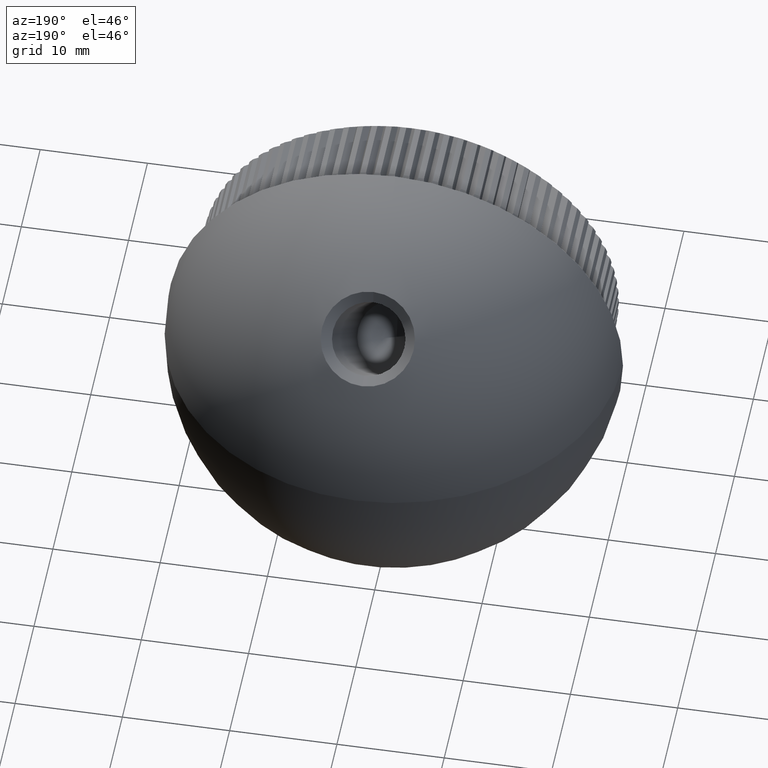
[diagram: clean part render]
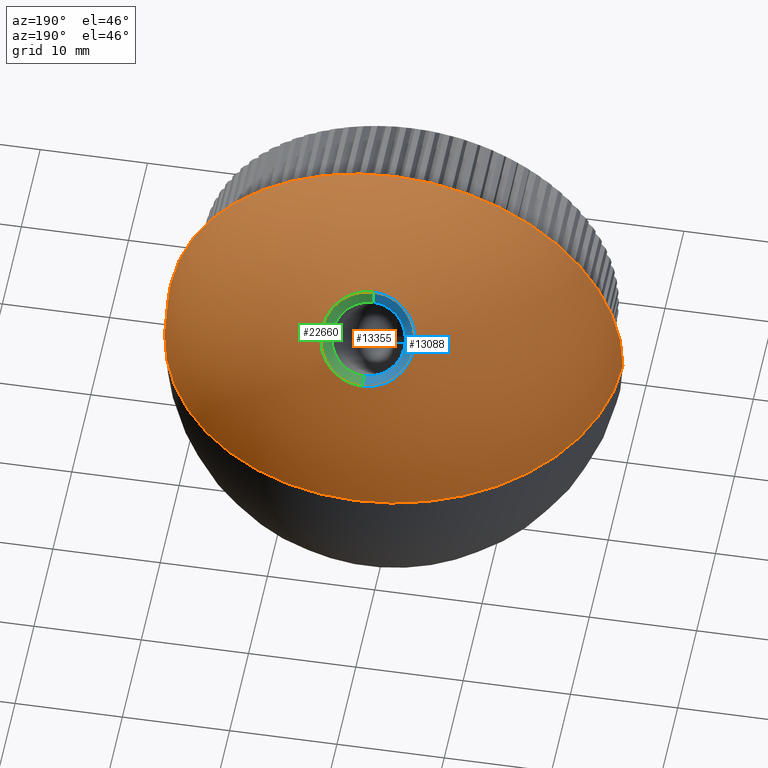
[diagram: same view with three faces highlighted in distinct colors, each labeled with its STEP entity id]
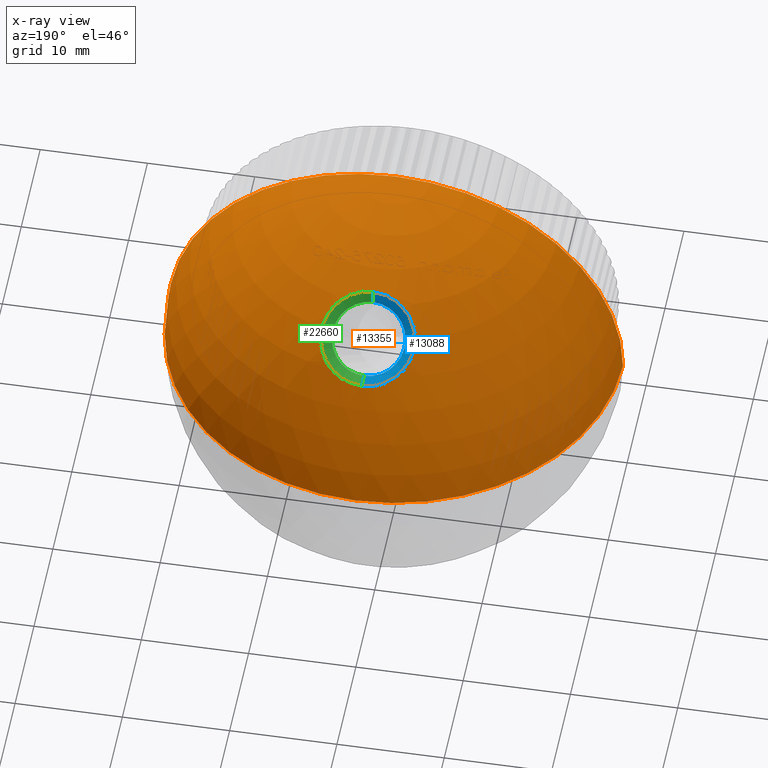
[diagram: x-ray of the same camera — body ghosted, the three highlighted faces saturated]
A machine part, auxiliary view with three faces highlighted in distinct colors.
The next image is the same camera in x-ray (body ghosted, the three faces saturated) — at least one of them is partly hidden behind the body in this view.
Their STEP definitions:

[orange] entity #13355 — the highlighted spherical surface has radius 21.2 mm.
#14 = CARTESIAN_POINT ( 'NONE',  ( -1.149114390993522900E-027, 8.999999999999996400, 0.0000000000000000000 ) ) ;
#226 = EDGE_CURVE ( 'NONE', #10403, #14787, #7999, .T. ) ;
#857 = CIRCLE ( 'NONE', #19866, 4.361186414497343100 ) ;
#1172 = CARTESIAN_POINT ( 'NONE',  ( 1.298125607094238800E-015, 30.19999999999999900, 0.0000000000000000000 ) ) ;
#2031 = AXIS2_PLACEMENT_3D ( 'NONE', #18481, #7662, #11310 ) ;
#2694 = AXIS2_PLACEMENT_3D ( 'NONE', #5073, #18035, #5302 ) ;
#2989 = EDGE_CURVE ( 'NONE', #22889, #7514, #857, .T. ) ;
#3188 = EDGE_CURVE ( 'NONE', #7514, #22889, #13546, .T. ) ;
#4443 = CARTESIAN_POINT ( 'NONE',  ( -1.096426340312313600E-015, 20.58621390791158500, 17.75386288333096000 ) ) ;
#5073 = CARTESIAN_POINT ( 'NONE',  ( -3.424513085742286300E-028, 8.999999999999998200, 0.0000000000000000000 ) ) ;
#5302 = DIRECTION ( 'NONE',  ( 1.000000000000000000, 0.0000000000000000000, 0.0000000000000000000 ) ) ;
#5649 = ORIENTED_EDGE ( 'NONE', *, *, #2989, .T. ) ;
#5758 = ORIENTED_EDGE ( 'NONE', *, *, #18448, .T. ) ;
#6280 = CARTESIAN_POINT ( 'NONE',  ( -21.20000000000000300, 8.999999999999998200, 2.596251214192388800E-015 ) ) ;
#6615 = VERTEX_POINT ( 'NONE', #6280 ) ;
#7459 = ORIENTED_EDGE ( 'NONE', *, *, #9741, .F. ) ;
#7514 = VERTEX_POINT ( 'NONE', #19023 ) ;
#7603 = FACE_BOUND ( 'NONE', #9764, .T. ) ;
#7662 = DIRECTION ( 'NONE',  ( -0.0000000000000000000, -0.7071067811865500200, -0.7071067811865450200 ) ) ;
#7999 = CIRCLE ( 'NONE', #10503, 21.20000000000000300 ) ;
#8632 = CARTESIAN_POINT ( 'NONE',  ( -1.149114390993522900E-027, 8.999999999999996400, 0.0000000000000000000 ) ) ;
#8944 = DIRECTION ( 'NONE',  ( 1.000000000000000000, 0.0000000000000000000, 0.0000000000000000000 ) ) ;
#9741 = EDGE_CURVE ( 'NONE', #14787, #6615, #10266, .T. ) ;
#9764 = EDGE_LOOP ( 'NONE', ( #5649, #21074 ) ) ;
#10266 = CIRCLE ( 'NONE', #2694, 21.20000000000000300 ) ;
#10315 = DIRECTION ( 'NONE',  ( 0.0000000000000000000, 0.7071067811865449100, -0.7071067811865500200 ) ) ;
#10403 = VERTEX_POINT ( 'NONE', #1172 ) ;
#10503 = AXIS2_PLACEMENT_3D ( 'NONE', #10994, #14446, #16493 ) ;
#10994 = CARTESIAN_POINT ( 'NONE',  ( -1.149114390993522900E-027, 8.999999999999996400, 0.0000000000000000000 ) ) ;
#11310 = DIRECTION ( 'NONE',  ( 0.0000000000000000000, 0.7071067811865449100, -0.7071067811865500200 ) ) ;
#11844 = SPHERICAL_SURFACE ( 'NONE', #17812, 21.20000000000000300 ) ;
#13028 = AXIS2_PLACEMENT_3D ( 'NONE', #8632, #23113, #21234 ) ;
#13355 = ADVANCED_FACE ( 'NONE', ( #7603, #22544 ), #11844, .T. ) ;
#13546 = CIRCLE ( 'NONE', #2031, 4.361186414497343100 ) ;
#14047 = ORIENTED_EDGE ( 'NONE', *, *, #226, .F. ) ;
#14446 = DIRECTION ( 'NONE',  ( 0.0000000000000000000, 0.0000000000000000000, -1.000000000000000000 ) ) ;
#14785 = CIRCLE ( 'NONE', #13028, 21.20000000000000300 ) ;
#14787 = VERTEX_POINT ( 'NONE', #15116 ) ;
#15116 = CARTESIAN_POINT ( 'NONE',  ( 21.20000000000000300, 8.999999999999998200, 0.0000000000000000000 ) ) ;
#16287 = DIRECTION ( 'NONE',  ( 0.0000000000000000000, -0.0000000000000000000, 1.000000000000000000 ) ) ;
#16493 = DIRECTION ( 'NONE',  ( -1.000000000000000000, 0.0000000000000000000, 0.0000000000000000000 ) ) ;
#17812 = AXIS2_PLACEMENT_3D ( 'NONE', #14, #16287, #8944 ) ;
#18035 = DIRECTION ( 'NONE',  ( 3.805014539713652200E-029, -1.000000000000000000, -0.0000000000000000000 ) ) ;
#18448 = EDGE_CURVE ( 'NONE', #10403, #6615, #14785, .T. ) ;
#18481 = CARTESIAN_POINT ( 'NONE',  ( -1.149114390993522900E-027, 23.67003839562131200, 14.67003839562121000 ) ) ;
#19023 = CARTESIAN_POINT ( 'NONE',  ( -5.623350420124045700E-016, 26.75386288333099600, 11.58621390791150900 ) ) ;
#19452 = DIRECTION ( 'NONE',  ( -0.0000000000000000000, -0.7071067811865500200, -0.7071067811865450200 ) ) ;
#19662 = EDGE_LOOP ( 'NONE', ( #14047, #5758, #7459 ) ) ;
#19866 = AXIS2_PLACEMENT_3D ( 'NONE', #21096, #19452, #10315 ) ;
#21074 = ORIENTED_EDGE ( 'NONE', *, *, #3188, .T. ) ;
#21096 = CARTESIAN_POINT ( 'NONE',  ( -1.149114390993522900E-027, 23.67003839562131200, 14.67003839562121000 ) ) ;
#21234 = DIRECTION ( 'NONE',  ( 1.000000000000000000, 0.0000000000000000000, -1.224646799147353200E-016 ) ) ;
#22544 = FACE_OUTER_BOUND ( 'NONE', #19662, .T. ) ;
#22889 = VERTEX_POINT ( 'NONE', #4443 ) ;
#23113 = DIRECTION ( 'NONE',  ( 1.224646799147353200E-016, 4.659798876769463300E-045, 1.000000000000000000 ) ) ;

[blue] entity #13088 — the highlighted conical surface has half-angle 54.229 deg.
#501 = DIRECTION ( 'NONE',  ( 0.0000000000000000000, -0.1603773584905680000, 0.9870557749608619400 ) ) ;
#857 = CIRCLE ( 'NONE', #19866, 4.361186414497343100 ) ;
#894 = DIRECTION ( 'NONE',  ( 0.0000000000000000000, 0.7071067811865500200, 0.7071067811865450200 ) ) ;
#2989 = EDGE_CURVE ( 'NONE', #22889, #7514, #857, .T. ) ;
#3111 = DIRECTION ( 'NONE',  ( 0.0000000000000000000, 0.7071067811865500200, 0.7071067811865450200 ) ) ;
#4073 = EDGE_LOOP ( 'NONE', ( #16555, #9986, #5207, #22449 ) ) ;
#4443 = CARTESIAN_POINT ( 'NONE',  ( -1.096426340312313600E-015, 20.58621390791158500, 17.75386288333096000 ) ) ;
#5207 = ORIENTED_EDGE ( 'NONE', *, *, #2989, .F. ) ;
#6021 = VECTOR ( 'NONE', #12148, 1000.000000000000100 ) ;
#6546 = DIRECTION ( 'NONE',  ( 0.0000000000000000000, -0.7071067811865450200, 0.7071067811865500200 ) ) ;
#6862 = CIRCLE ( 'NONE', #18406, 3.399999999999992400 ) ;
#7100 = VERTEX_POINT ( 'NONE', #20801 ) ;
#7514 = VERTEX_POINT ( 'NONE', #19023 ) ;
#8774 = EDGE_CURVE ( 'NONE', #10862, #7514, #12550, .T. ) ;
#9709 = EDGE_CURVE ( 'NONE', #10862, #7100, #6862, .T. ) ;
#9985 = EDGE_CURVE ( 'NONE', #7100, #22889, #10854, .T. ) ;
#9986 = ORIENTED_EDGE ( 'NONE', *, *, #8774, .T. ) ;
#10315 = DIRECTION ( 'NONE',  ( 0.0000000000000000000, 0.7071067811865449100, -0.7071067811865500200 ) ) ;
#10854 = LINE ( 'NONE', #22175, #15613 ) ;
#10862 = VERTEX_POINT ( 'NONE', #14163 ) ;
#12148 = DIRECTION ( 'NONE',  ( 9.936266710375372700E-017, 0.9870557749608608300, -0.1603773584905748800 ) ) ;
#12181 = DIRECTION ( 'NONE',  ( 0.0000000000000000000, -0.7071067811865450200, 0.7071067811865500200 ) ) ;
#12550 = LINE ( 'NONE', #19432, #6021 ) ;
#13088 = ADVANCED_FACE ( 'NONE', ( #21990 ), #20599, .F. ) ;
#14163 = CARTESIAN_POINT ( 'NONE',  ( -6.800464286022144300E-016, 25.58453332225147700, 11.77620721018291200 ) ) ;
#15613 = VECTOR ( 'NONE', #501, 1000.000000000000100 ) ;
#16555 = ORIENTED_EDGE ( 'NONE', *, *, #9709, .F. ) ;
#17216 = CARTESIAN_POINT ( 'NONE',  ( -1.096426340312313600E-015, 23.18037026621723100, 14.18037026621717800 ) ) ;
#18406 = AXIS2_PLACEMENT_3D ( 'NONE', #22897, #3111, #12181 ) ;
#19023 = CARTESIAN_POINT ( 'NONE',  ( -5.623350420124045700E-016, 26.75386288333099600, 11.58621390791150900 ) ) ;
#19432 = CARTESIAN_POINT ( 'NONE',  ( -6.800464286022144300E-016, 25.58453332225147700, 11.77620721018291200 ) ) ;
#19452 = DIRECTION ( 'NONE',  ( -0.0000000000000000000, -0.7071067811865500200, -0.7071067811865450200 ) ) ;
#19866 = AXIS2_PLACEMENT_3D ( 'NONE', #21096, #19452, #10315 ) ;
#20599 = CONICAL_SURFACE ( 'NONE', #20974, 3.399999999999992400, 0.9464711116459212400 ) ;
#20801 = CARTESIAN_POINT ( 'NONE',  ( -1.096426340312313600E-015, 20.77620721018298500, 16.58453332225144200 ) ) ;
#20974 = AXIS2_PLACEMENT_3D ( 'NONE', #17216, #894, #6546 ) ;
#21096 = CARTESIAN_POINT ( 'NONE',  ( -1.149114390993522900E-027, 23.67003839562131200, 14.67003839562121000 ) ) ;
#21990 = FACE_OUTER_BOUND ( 'NONE', #4073, .T. ) ;
#22175 = CARTESIAN_POINT ( 'NONE',  ( -1.096426340312313600E-015, 20.77620721018298500, 16.58453332225144200 ) ) ;
#22449 = ORIENTED_EDGE ( 'NONE', *, *, #9985, .F. ) ;
#22889 = VERTEX_POINT ( 'NONE', #4443 ) ;
#22897 = CARTESIAN_POINT ( 'NONE',  ( -1.096426340312313600E-015, 23.18037026621723100, 14.18037026621717800 ) ) ;

[green] entity #22660 — the highlighted conical surface has half-angle 54.229 deg.
#450 = DIRECTION ( 'NONE',  ( 0.0000000000000000000, -0.7071067811865450200, 0.7071067811865500200 ) ) ;
#501 = DIRECTION ( 'NONE',  ( 0.0000000000000000000, -0.1603773584905680000, 0.9870557749608619400 ) ) ;
#599 = DIRECTION ( 'NONE',  ( 0.0000000000000000000, 0.7071067811865500200, 0.7071067811865450200 ) ) ;
#2031 = AXIS2_PLACEMENT_3D ( 'NONE', #18481, #7662, #11310 ) ;
#2537 = CARTESIAN_POINT ( 'NONE',  ( -1.096426340312313600E-015, 23.18037026621723100, 14.18037026621717800 ) ) ;
#3188 = EDGE_CURVE ( 'NONE', #7514, #22889, #13546, .T. ) ;
#4443 = CARTESIAN_POINT ( 'NONE',  ( -1.096426340312313600E-015, 20.58621390791158500, 17.75386288333096000 ) ) ;
#6021 = VECTOR ( 'NONE', #12148, 1000.000000000000100 ) ;
#6935 = ORIENTED_EDGE ( 'NONE', *, *, #3188, .F. ) ;
#6982 = ORIENTED_EDGE ( 'NONE', *, *, #8774, .F. ) ;
#7058 = CIRCLE ( 'NONE', #14323, 3.399999999999992400 ) ;
#7100 = VERTEX_POINT ( 'NONE', #20801 ) ;
#7514 = VERTEX_POINT ( 'NONE', #19023 ) ;
#7662 = DIRECTION ( 'NONE',  ( -0.0000000000000000000, -0.7071067811865500200, -0.7071067811865450200 ) ) ;
#8051 = DIRECTION ( 'NONE',  ( 0.0000000000000000000, 0.7071067811865500200, 0.7071067811865450200 ) ) ;
#8760 = CONICAL_SURFACE ( 'NONE', #17785, 3.399999999999992400, 0.9464711116459212400 ) ;
#8774 = EDGE_CURVE ( 'NONE', #10862, #7514, #12550, .T. ) ;
#9985 = EDGE_CURVE ( 'NONE', #7100, #22889, #10854, .T. ) ;
#10422 = ORIENTED_EDGE ( 'NONE', *, *, #12687, .F. ) ;
#10505 = FACE_OUTER_BOUND ( 'NONE', #17311, .T. ) ;
#10854 = LINE ( 'NONE', #22175, #15613 ) ;
#10862 = VERTEX_POINT ( 'NONE', #14163 ) ;
#11310 = DIRECTION ( 'NONE',  ( 0.0000000000000000000, 0.7071067811865449100, -0.7071067811865500200 ) ) ;
#12148 = DIRECTION ( 'NONE',  ( 9.936266710375372700E-017, 0.9870557749608608300, -0.1603773584905748800 ) ) ;
#12550 = LINE ( 'NONE', #19432, #6021 ) ;
#12687 = EDGE_CURVE ( 'NONE', #7100, #10862, #7058, .T. ) ;
#13413 = DIRECTION ( 'NONE',  ( 0.0000000000000000000, -0.7071067811865450200, 0.7071067811865500200 ) ) ;
#13546 = CIRCLE ( 'NONE', #2031, 4.361186414497343100 ) ;
#14163 = CARTESIAN_POINT ( 'NONE',  ( -6.800464286022144300E-016, 25.58453332225147700, 11.77620721018291200 ) ) ;
#14323 = AXIS2_PLACEMENT_3D ( 'NONE', #2537, #8051, #13413 ) ;
#15613 = VECTOR ( 'NONE', #501, 1000.000000000000100 ) ;
#15688 = ORIENTED_EDGE ( 'NONE', *, *, #9985, .T. ) ;
#17311 = EDGE_LOOP ( 'NONE', ( #6982, #10422, #15688, #6935 ) ) ;
#17785 = AXIS2_PLACEMENT_3D ( 'NONE', #21901, #599, #450 ) ;
#18481 = CARTESIAN_POINT ( 'NONE',  ( -1.149114390993522900E-027, 23.67003839562131200, 14.67003839562121000 ) ) ;
#19023 = CARTESIAN_POINT ( 'NONE',  ( -5.623350420124045700E-016, 26.75386288333099600, 11.58621390791150900 ) ) ;
#19432 = CARTESIAN_POINT ( 'NONE',  ( -6.800464286022144300E-016, 25.58453332225147700, 11.77620721018291200 ) ) ;
#20801 = CARTESIAN_POINT ( 'NONE',  ( -1.096426340312313600E-015, 20.77620721018298500, 16.58453332225144200 ) ) ;
#21901 = CARTESIAN_POINT ( 'NONE',  ( -1.096426340312313600E-015, 23.18037026621723100, 14.18037026621717800 ) ) ;
#22175 = CARTESIAN_POINT ( 'NONE',  ( -1.096426340312313600E-015, 20.77620721018298500, 16.58453332225144200 ) ) ;
#22660 = ADVANCED_FACE ( 'NONE', ( #10505 ), #8760, .F. ) ;
#22889 = VERTEX_POINT ( 'NONE', #4443 ) ;